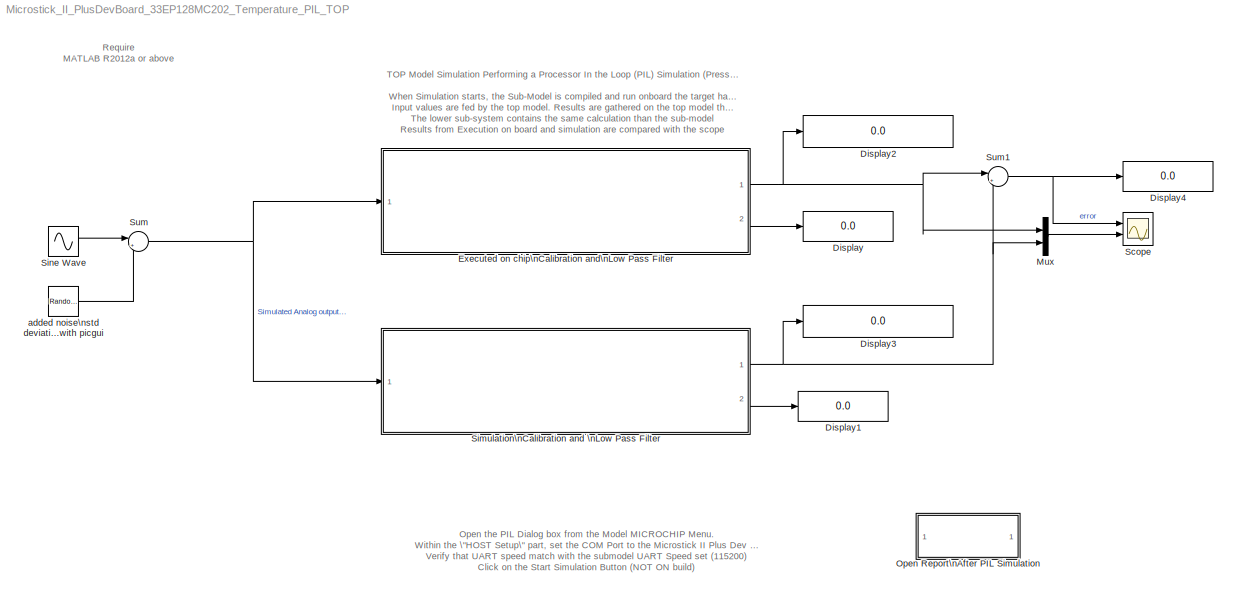
MODEL Microstick_II_PlusDevBoard_33EP128MC202_Temperature_PIL_TOP
KIND model
BLOCK [Display] Display
  Decimation = 1
  Lockdown = off
  Ports = [1]
  SID = 702
BLOCK [Display] Display1
  Decimation = 1
  Lockdown = off
  Ports = [1]
  SID = 703
BLOCK [Display] Display2
  Decimation = 1
  Format = long
  Lockdown = off
  Ports = [1]
  SID = 721
BLOCK [Display] Display3
  Decimation = 1
  Format = long
  Lockdown = off
  Ports = [1]
  SID = 723
BLOCK [Display] Display4
  Decimation = 1
  Lockdown = off
  Ports = [1]
  SID = 724
BLOCK [ModelReference] Executed on chip\nCalibration and\nLow Pass Filter
  CopyOfModelName = Microstick_II_PlusDevBoard_33EP128MC202_Temperature_PIL_Sub
  DefaultDataLogging = on
  ModelNameDialog = Microstick_II_PlusDevBoard_33EP128MC202_Temperature_PIL_Sub
  ModelReferenceVersion = 1.236
  Ports = [1, 2]
  SID = 698
BLOCK [Mux] Mux
  DisplayOption = bar
  Inputs = 2
  Ports = [2, 1]
  SID = 706
BLOCK [SubSystem] Open Report\nAfter PIL Simulation
  FunctionWithSeparateData = off
  MaskDisplay = disp('Open PIL\\nProfiling report');
  MaskHideContents = off
  MaskIconFrame = on
  MaskIconOpaque = on
  MaskIconRotate = none
  MaskIconUnits = autoscale
  MaskPortRotate = default
  MinAlgLoopOccurrences = off
  Opaque = off
  OpenFcn = if exist('executionProfile','var') == 1           \nexecutionProfile.report;                          \nelse                                              \nerrordlg('PIL has not run yet.', 'Run PIL first');\nend
  Ports = []
  PropExecContextOutsideSubsystem = off
  RTWSystemCode = Auto
  RequestExecContextInheritance = off
  SID = 717
BLOCK [Scope] Scope
  DataFormat = StructureWithTime
  Floating = off
  LimitDataPoints = off
  NumInputPorts = 2
  Ports = [2]
  SID = 704
  SampleTime = 0
  ShowLegends = off
  YMax = 1~24.36
  YMin = -1~24.13
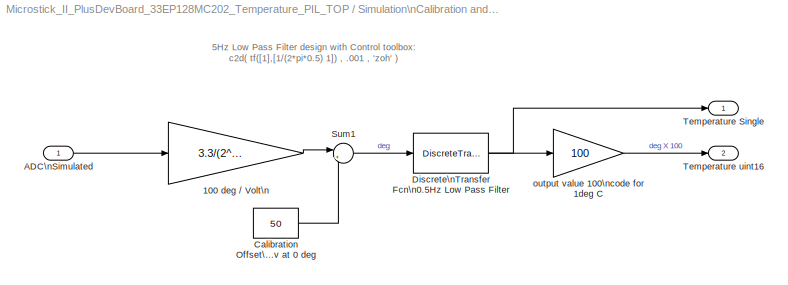
BLOCK [SubSystem] Simulation\nCalibration and \nLow Pass Filter
  FunctionWithSeparateData = off
  MaskHideContents = off
  MinAlgLoopOccurrences = off
  Opaque = off
  Ports = [1, 2]
  PropExecContextOutsideSubsystem = off
  RTWSystemCode = Auto
  RequestExecContextInheritance = off
  SID = 707
BLOCK [Gain] Simulation\nCalibration and \nLow Pass Filter/100 deg // Volt\n
  Gain = 3.3/(2^16) * 100
  OutDataTypeStr = single
  ParamDataTypeStr = Inherit: Inherit via internal rule
  SID = 709
  SaturateOnIntegerOverflow = off
BLOCK [Inport] Simulation\nCalibration and \nLow Pass Filter/ADC\nSimulated
  IconDisplay = Port number
  OutDataTypeStr = uint16
  SID = 708
  SampleTime = .001
BLOCK [Constant] Simulation\nCalibration and \nLow Pass Filter/Calibration Offset\n500 mv at 0 deg
  OutDataTypeStr = Inherit: Inherit via back propagation
  SID = 710
  SampleTime = -1
  Value = 50
BLOCK [DiscreteTransferFcn] Simulation\nCalibration and \nLow Pass Filter/Discrete\nTransfer Fcn\n0.5Hz Low Pass Filter
  Denominator = [1 -0.99686]
  InputPortMap = u0
  Numerator = [0.0031367]
  Ports = [1, 1]
  SID = 711
BLOCK [Sum] Simulation\nCalibration and \nLow Pass Filter/Sum1
  AccumDataTypeStr = Inherit: Same as first input
  IconShape = round
  InputSameDT = off
  Inputs = |+-
  OutDataTypeStr = Inherit: Inherit via internal rule
  Ports = [2, 1]
  SID = 712
  SaturateOnIntegerOverflow = off
BLOCK [Outport] Simulation\nCalibration and \nLow Pass Filter/Temperature Single
  IconDisplay = Port number
  OutDataTypeStr = single
  SID = 714
  SampleTime = .001
BLOCK [Outport] Simulation\nCalibration and \nLow Pass Filter/Temperature uint16
  IconDisplay = Port number
  OutDataTypeStr = uint16
  Port = 2
  SID = 715
  SampleTime = .001
BLOCK [Gain] Simulation\nCalibration and \nLow Pass Filter/output value 100\ncode for 1deg C
  Gain = 100
  OutDataTypeStr = uint16
  ParamDataTypeStr = Inherit: Inherit via internal rule
  SID = 713
  SaturateOnIntegerOverflow = off
BLOCK [Sin] Sine Wave
  Amplitude = 50
  Bias = 14750
  Frequency = 2*pi
  Ports = [0, 1]
  SID = 699
  SampleTime = .001
BLOCK [Sum] Sum
  IconShape = round
  InputSameDT = off
  Inputs = |++
  OutDataTypeStr = uint16
  Ports = [2, 1]
  RndMeth = Round
  SID = 701
BLOCK [Sum] Sum1
  IconShape = round
  InputSameDT = off
  Inputs = |+-
  OutDataTypeStr = Inherit: Inherit via internal rule
  Ports = [2, 1]
  SID = 705
  SaturateOnIntegerOverflow = off
BLOCK [RandomNumber] added noise\nstd deviation of raw values\nwere measured with picgui
  SID = 700
  SampleTime = 0.001
  Variance = 2.5
ANNOTATION (root): Open the PIL Dialog box from the Model MICROCHIP Menu.\nWithin the \"HOST Setup\" part, set the COM Port to the Microstick II Plus Dev board UART (through USB)\nVerify that UART speed match with the submodel UART Speed set (115200)\nClick on the Start Simulation Button (NOT ON build)
ANNOTATION (root): Require \nMATLAB R2012a or above
ANNOTATION (root): TOP Model Simulation Performing a Processor In the Loop (PIL) Simulation (Press the simulation button)\n\nWhen Simulation starts, the Sub-Model is compiled and run onboard the target hardware (Microstick Plus Dev Board).\nInput values are fed by the top model. Results are gathered on the top model through an UART link.\nThe lower sub-system contains the same calculation than the sub-model\nResults...<+140ch>
ANNOTATION Simulation\nCalibration and \nLow Pass Filter: 5Hz Low Pass Filter design with Control toolbox:\nc2d( tf([1],[1/(2*pi*0.5) 1]) , .001 , 'zoh' )
NET Executed on chip\nCalibration and\nLow Pass Filter:1 -> Display2:1, Mux:1, Sum1:1
LINE Executed on chip\nCalibration and\nLow Pass Filter:2 -> Display:1
LINE Mux:1 -> Scope:2
LINE Simulation\nCalibration and \nLow Pass Filter/100 deg // Volt\n:1 -> Simulation\nCalibration and \nLow Pass Filter/Sum1:1
LINE Simulation\nCalibration and \nLow Pass Filter/ADC\nSimulated:1 -> Simulation\nCalibration and \nLow Pass Filter/100 deg // Volt\n:1
LINE Simulation\nCalibration and \nLow Pass Filter/Calibration Offset\n500 mv at 0 deg:1 -> Simulation\nCalibration and \nLow Pass Filter/Sum1:2
NET Simulation\nCalibration and \nLow Pass Filter/Discrete\nTransfer Fcn\n0.5Hz Low Pass Filter:1 -> Simulation\nCalibration and \nLow Pass Filter/Temperature Single:1, Simulation\nCalibration and \nLow Pass Filter/output value 100\ncode for 1deg C:1
LINE Simulation\nCalibration and \nLow Pass Filter/Sum1:1 -> Simulation\nCalibration and \nLow Pass Filter/Discrete\nTransfer Fcn\n0.5Hz Low Pass Filter:1
LINE Simulation\nCalibration and \nLow Pass Filter/output value 100\ncode for 1deg C:1 -> Simulation\nCalibration and \nLow Pass Filter/Temperature uint16:1
NET Simulation\nCalibration and \nLow Pass Filter:1 -> Display3:1, Mux:2, Sum1:2
LINE Simulation\nCalibration and \nLow Pass Filter:2 -> Display1:1
LINE Sine Wave:1 -> Sum:1
NET Sum1:1 -> Display4:1, Scope:1
NET Sum:1 -> Executed on chip\nCalibration and\nLow Pass Filter:1, Simulation\nCalibration and \nLow Pass Filter:1
LINE added noise\nstd deviation of raw values\nwere measured with picgui:1 -> Sum:2
note: NET lines group one-source signal fan-out (src -> all destinations, sorted); 1:1 wires keep LINE
